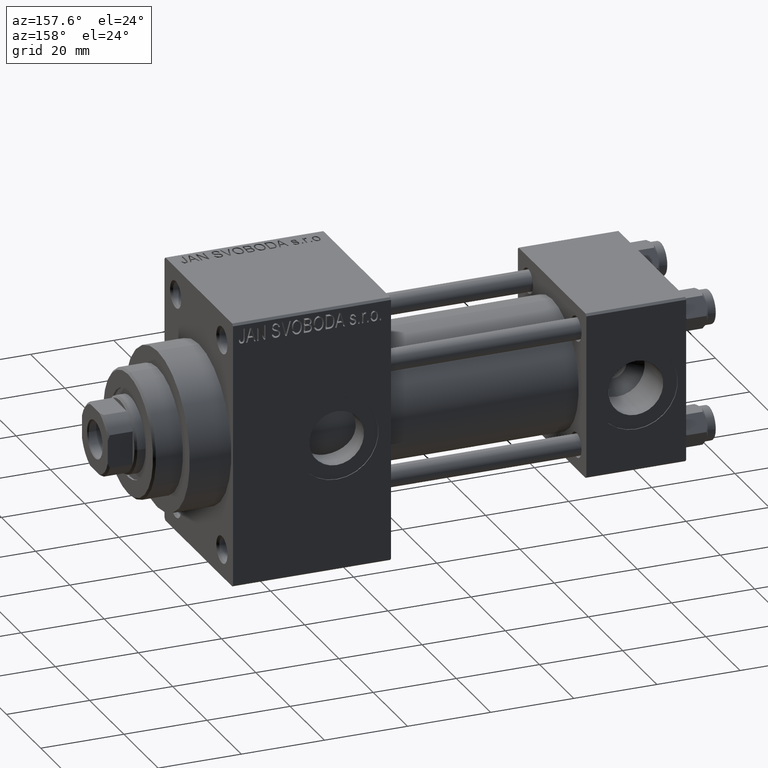
[diagram: clean part render]
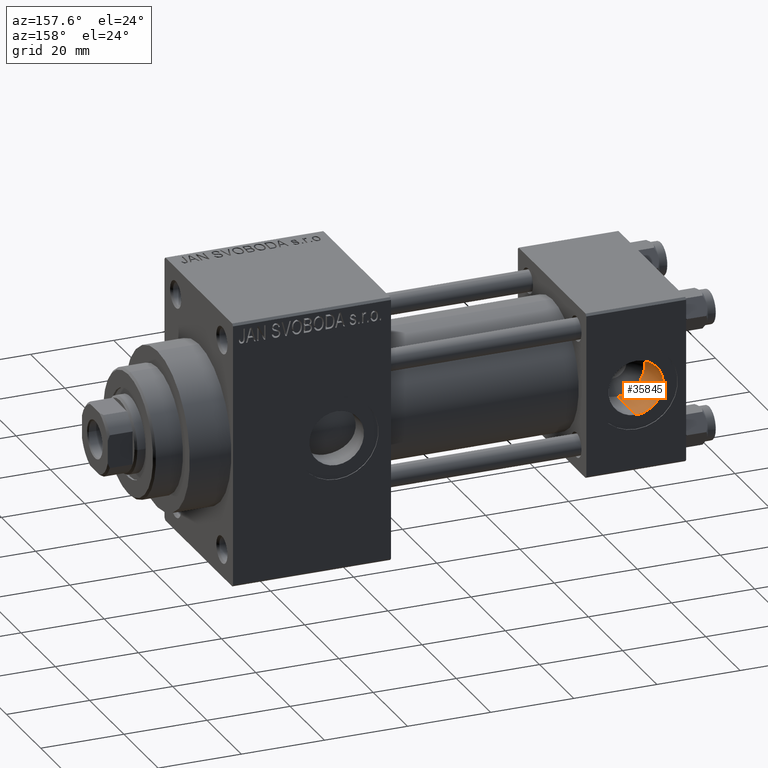
[diagram: same view with one face highlighted and labeled with its STEP entity id]
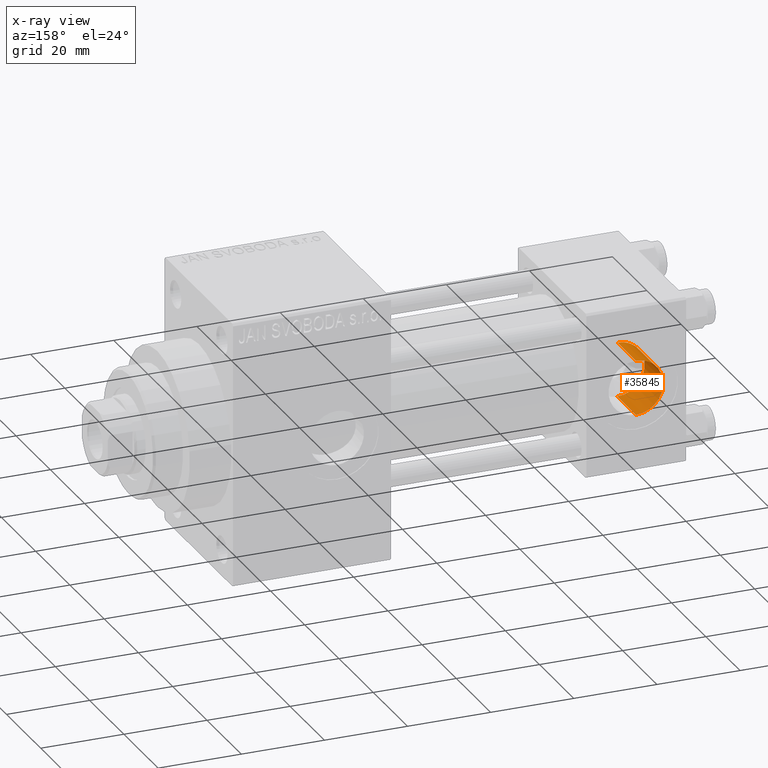
[diagram: x-ray of the same camera — body ghosted, the highlighted face saturated]
A machine part, auxiliary view. The second image highlights one B-rep face of the part: STEP entity #35845.
The next image is the same camera in x-ray: the body ghosted, the highlighted face saturated — about 0% of this face is hidden behind the body in this view.
In plain terms, the highlighted cylindrical surface (edge-blend (fillet) strip) has radius 6.58 mm, axis along (0, 1, 0).
Its self-contained STEP definition (entity closure, byte-faithful):
#63 = AXIS2_PLACEMENT_3D ( 'NONE', #40951, #41437, #41199 ) ;
#1946 = LINE ( 'NONE', #47005, #41641 ) ;
#2540 = VERTEX_POINT ( 'NONE', #9370 ) ;
#2954 = ORIENTED_EDGE ( 'NONE', *, *, #7188, .T. ) ;
#2964 = ORIENTED_EDGE ( 'NONE', *, *, #11756, .F. ) ;
#4549 = EDGE_CURVE ( 'NONE', #16981, #43191, #1946, .T. ) ;
#5394 = DIRECTION ( 'NONE',  ( 0.000000000000000000, 0.000000000000000000, 1.000000000000000000 ) ) ;
#6026 = VECTOR ( 'NONE', #46284, 1000.000000000000000 ) ;
#7188 = EDGE_CURVE ( 'NONE', #43191, #2540, #25212, .T. ) ;
#8002 = DIRECTION ( 'NONE',  ( 0.000000000000000000, 0.000000000000000000, 1.000000000000000000 ) ) ;
#9370 = CARTESIAN_POINT ( 'NONE',  ( 12.00000000000000000, 19.80000000000000071, 6.579999999999998295 ) ) ;
#9810 = CARTESIAN_POINT ( 'NONE',  ( 12.00000000000000000, 9.000000000000001776, 0.000000000000000000 ) ) ;
#10422 = ORIENTED_EDGE ( 'NONE', *, *, #4549, .T. ) ;
#11756 = EDGE_CURVE ( 'NONE', #14777, #2540, #34959, .T. ) ;
#13773 = CARTESIAN_POINT ( 'NONE',  ( 12.00000000000000000, 19.80000000000000071, -6.579999999999998295 ) ) ;
#14777 = VERTEX_POINT ( 'NONE', #32484 ) ;
#14916 = CARTESIAN_POINT ( 'NONE',  ( 12.00000000000000000, 8.939999999999997726, 0.000000000000000000 ) ) ;
#15743 = AXIS2_PLACEMENT_3D ( 'NONE', #14916, #29682, #8002 ) ;
#16972 = DIRECTION ( 'NONE',  ( -0.000000000000000000, 1.000000000000000000, -0.000000000000000000 ) ) ;
#16981 = VERTEX_POINT ( 'NONE', #39881 ) ;
#23610 = ORIENTED_EDGE ( 'NONE', *, *, #25274, .T. ) ;
#25212 = CIRCLE ( 'NONE', #63, 6.579999999999998295 ) ;
#25274 = EDGE_CURVE ( 'NONE', #14777, #16981, #36990, .T. ) ;
#26403 = EDGE_LOOP ( 'NONE', ( #23610, #10422, #2954, #2964 ) ) ;
#29478 = AXIS2_PLACEMENT_3D ( 'NONE', #9810, #47491, #5394 ) ;
#29682 = DIRECTION ( 'NONE',  ( -0.000000000000000000, -1.000000000000000000, -0.000000000000000000 ) ) ;
#31982 = FACE_OUTER_BOUND ( 'NONE', #26403, .T. ) ;
#32484 = CARTESIAN_POINT ( 'NONE',  ( 12.00000000000000000, 8.939999999999997726, 6.579999999999998295 ) ) ;
#32704 = CYLINDRICAL_SURFACE ( 'NONE', #29478, 6.579999999999998295 ) ;
#34959 = LINE ( 'NONE', #43074, #6026 ) ;
#35845 = ADVANCED_FACE ( 'NONE', ( #31982 ), #32704, .F. ) ;
#36990 = CIRCLE ( 'NONE', #15743, 6.579999999999998295 ) ;
#39881 = CARTESIAN_POINT ( 'NONE',  ( 12.00000000000000000, 8.939999999999997726, -6.579999999999998295 ) ) ;
#40951 = CARTESIAN_POINT ( 'NONE',  ( 12.00000000000000000, 19.80000000000000071, 0.000000000000000000 ) ) ;
#41199 = DIRECTION ( 'NONE',  ( 0.000000000000000000, 0.000000000000000000, 1.000000000000000000 ) ) ;
#41437 = DIRECTION ( 'NONE',  ( 0.000000000000000000, 1.000000000000000000, 0.000000000000000000 ) ) ;
#41641 = VECTOR ( 'NONE', #16972, 1000.000000000000000 ) ;
#43074 = CARTESIAN_POINT ( 'NONE',  ( 12.00000000000000000, 9.000000000000001776, 6.579999999999998295 ) ) ;
#43191 = VERTEX_POINT ( 'NONE', #13773 ) ;
#46284 = DIRECTION ( 'NONE',  ( -0.000000000000000000, 1.000000000000000000, -0.000000000000000000 ) ) ;
#47005 = CARTESIAN_POINT ( 'NONE',  ( 12.00000000000000000, 9.000000000000001776, -6.579999999999998295 ) ) ;
#47491 = DIRECTION ( 'NONE',  ( -0.000000000000000000, 1.000000000000000000, -0.000000000000000000 ) ) ;